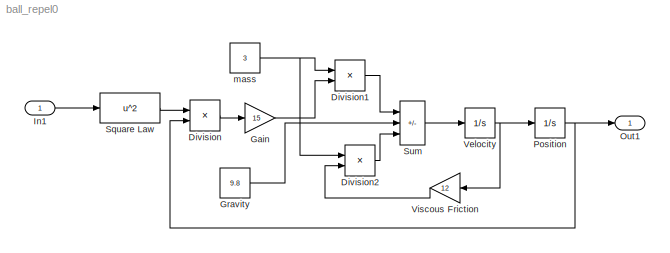
MODEL ball_repel0
KIND model
CONFIG AbsTol = auto
CONFIG FixedStep = auto
CONFIG MaxStep = auto
CONFIG RelTol = 1e-3
CONFIG Solver = ode45
CONFIG SolverMode = Auto
CONFIG StartTime = 0.0
CONFIG StopTime = 20.0
BLOCK [Product] Division
  Inputs = */
  Ports = [2, 1, 0, 0, 0]
  SaturateOnIntegerOverflow = on
BLOCK [Product] Division1
  Inputs = /*
  Ports = [2, 1, 0, 0, 0]
  SaturateOnIntegerOverflow = on
BLOCK [Product] Division2
  Inputs = /*
  Ports = [2, 1, 0, 0, 0]
  SaturateOnIntegerOverflow = on
BLOCK [Gain] Gain
  Gain = 15
  SaturateOnIntegerOverflow = on
BLOCK [Constant] Gravity
  Value = 9.8
BLOCK [Inport] In1
  DataType = auto
  Interpolate = on
  Port = 1
  PortWidth = -1
  SampleTime = -1
  SignalType = auto
BLOCK [Outport] Out1
  InitialOutput = []
  OutputWhenDisabled = held
  Port = 1
BLOCK [Integrator] Position
  AbsoluteTolerance = auto
  ExternalReset = none
  InitialCondition = .5
  InitialConditionSource = internal
  LimitOutput = off
  LowerSaturationLimit = -inf
  Ports = [1, 1, 0, 0, 0]
  ShowSaturationPort = off
  ShowStatePort = off
  UpperSaturationLimit = inf
BLOCK [Fcn] Square Law
  Expr = u^2
BLOCK [Sum] Sum
  IconShape = rectangular
  Inputs = |+--
  Ports = [3, 1, 0, 0, 0]
  SaturateOnIntegerOverflow = on
BLOCK [Integrator] Velocity
  AbsoluteTolerance = auto
  ExternalReset = none
  InitialCondition = 0
  InitialConditionSource = internal
  LimitOutput = off
  LowerSaturationLimit = -inf
  Ports = [1, 1, 0, 0, 0]
  ShowSaturationPort = off
  ShowStatePort = off
  UpperSaturationLimit = inf
BLOCK [Gain] Viscous Friction
  Gain = 12
  SaturateOnIntegerOverflow = on
BLOCK [Constant] mass
  Value = 3
LINE Division1:1 -> Sum:1
LINE Division2:1 -> Sum:3
LINE Division:1 -> Gain:1
LINE Gain:1 -> Division1:2
LINE Gravity:1 -> Sum:2
LINE In1:1 -> Square Law:1
NET Position:1 -> Division:2, Out1:1
LINE Square Law:1 -> Division:1
LINE Sum:1 -> Velocity:1
NET Velocity:1 -> Position:1, Viscous Friction:1
LINE Viscous Friction:1 -> Division2:2
NET mass:1 -> Division1:1, Division2:1
note: NET lines group one-source signal fan-out (src -> all destinations, sorted); 1:1 wires keep LINE
